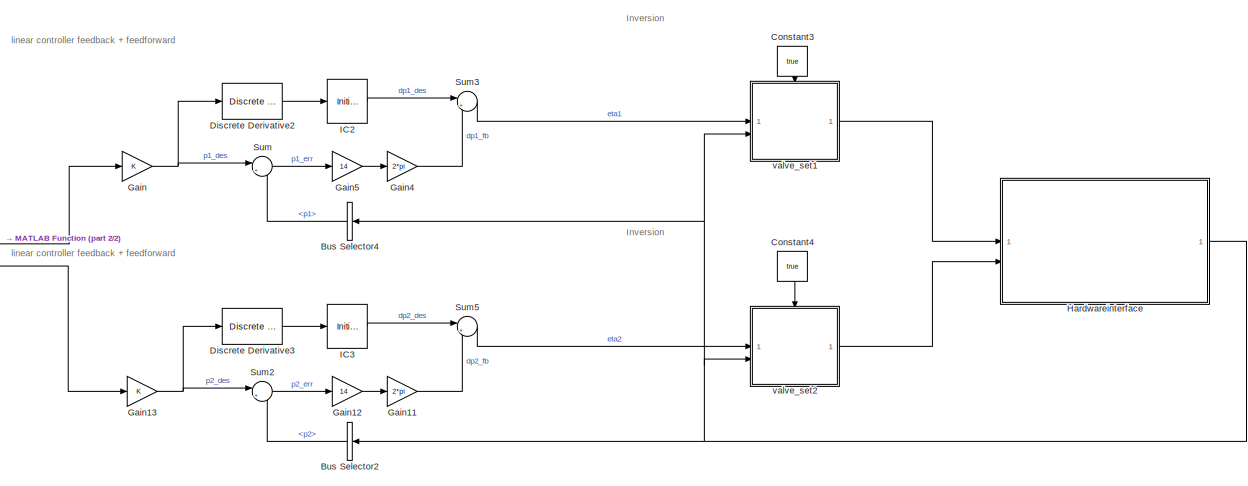
[diagram: root canvas - part 1/2, center side, full height]
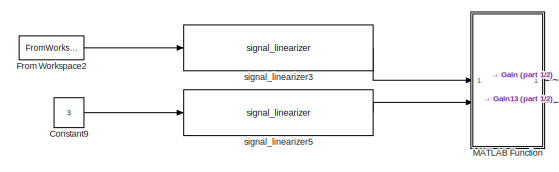
[diagram: root canvas - part 2/2, middle left region]
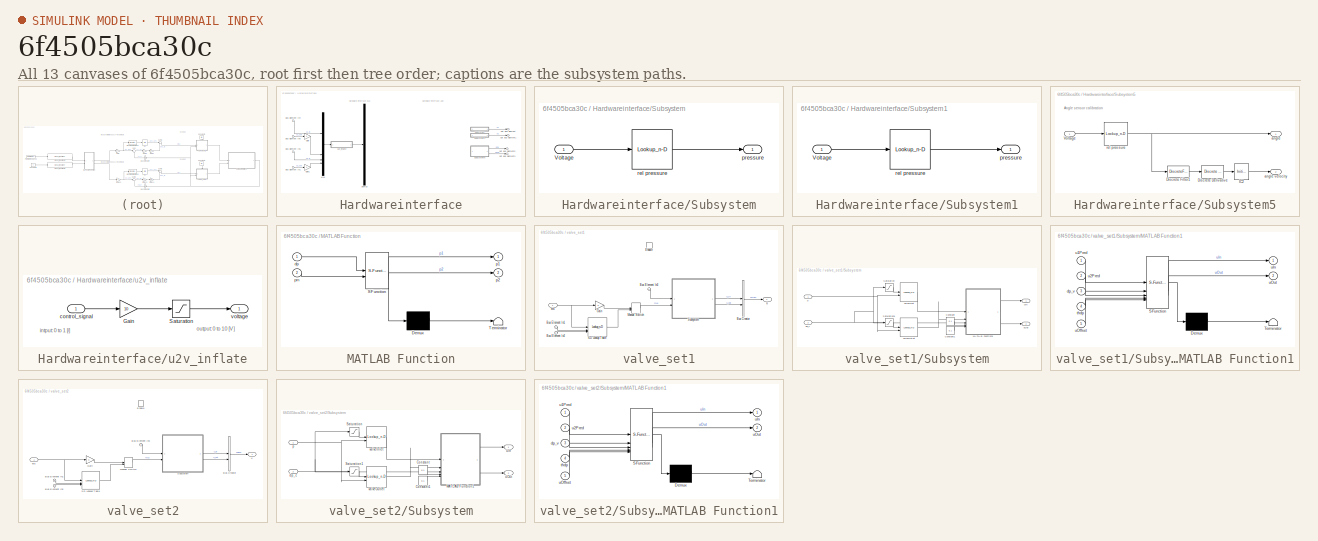
[diagram: thumbnail index - all 13 canvases of the model, root first then tree order]
MODEL slx_6f4505bca30c
KIND model
CONFIG AbsTol = auto
CONFIG EnableMultiTasking = off
CONFIG FixedStep = dt
CONFIG MaxStep = auto
CONFIG MinStep = auto
CONFIG RelTol = 1e-3
CONFIG SampleTimeConstraint = Unconstrained
CONFIG SolverName = FixedStepDiscrete
CONFIG StartTime = 0.0
CONFIG StopTime = inf
BLOCK [BusSelector] Bus Selector2
  NameLocation = top
  OutputSignals = p2
BLOCK [BusSelector] Bus Selector4
  NameLocation = top
  OutputSignals = p1
BLOCK [Constant] Constant3
  NameLocation = left
  Value = true
BLOCK [Constant] Constant4
  NameLocation = left
  Value = true
BLOCK [Constant] Constant9
  Value = 3
BLOCK [Reference] Discrete Derivative2  REF=simulink/Discrete/Discrete Derivative
  SourceBlock = simulink/Discrete/Discrete Derivative
  SourceType = Discrete Derivative
BLOCK [Reference] Discrete Derivative3  REF=simulink/Discrete/Discrete Derivative
  SourceBlock = simulink/Discrete/Discrete Derivative
  SourceType = Discrete Derivative
BLOCK [FromWorkspace] From Workspace2
  SampleTime = dta
  VariableName = pDesIn1
BLOCK [Gain] Gain
BLOCK [Gain] Gain11
  Gain = 2*pi
BLOCK [Gain] Gain12
  Gain = 14
BLOCK [Gain] Gain13
BLOCK [Gain] Gain4
  Gain = 2*pi
BLOCK [Gain] Gain5
  Gain = 14
BLOCK [SubSystem] Hardwareinterface
BLOCK [Inport] Hardwareinterface/Bus Element In1
  Port = 2
BLOCK [Inport] Hardwareinterface/Bus Element In4
BLOCK [Inport] Hardwareinterface/Bus Element In5
  Port = 2
BLOCK [Inport] Hardwareinterface/Bus Element In6
BLOCK [Demux] Hardwareinterface/Demux
BLOCK [Gain] Hardwareinterface/Gain
  Gain = -1
BLOCK [Gain] Hardwareinterface/Gain1
  Gain = -1
BLOCK [Mux] Hardwareinterface/Mux
  DisplayOption = bar
BLOCK [Outport] Hardwareinterface/Out Bus Element
BLOCK [Outport] Hardwareinterface/Out Bus Element1
BLOCK [Outport] Hardwareinterface/Out Bus Element3
BLOCK [Outport] Hardwareinterface/Out Bus Element5
BLOCK [SubSystem] Hardwareinterface/Subsystem
BLOCK [Inport] Hardwareinterface/Subsystem/Voltage
BLOCK [Outport] Hardwareinterface/Subsystem/pressure
  VectorParamsAs1DForOutWhenUnconnected = off
BLOCK [Lookup_n-D] Hardwareinterface/Subsystem/rel pressure
  BreakpointsForDimension1 = [0 10]
  InputPortMap = u0
  InternalRulePriority = Speed
  NumberOfTableDimensions = 1
  RndMeth = Simplest
  Table = [0 10]
BLOCK [SubSystem] Hardwareinterface/Subsystem1
BLOCK [Inport] Hardwareinterface/Subsystem1/Voltage
BLOCK [Outport] Hardwareinterface/Subsystem1/pressure
  VectorParamsAs1DForOutWhenUnconnected = off
BLOCK [Lookup_n-D] Hardwareinterface/Subsystem1/rel pressure
  BreakpointsForDimension1 = [0 10]
  InputPortMap = u0
  InternalRulePriority = Speed
  NumberOfTableDimensions = 1
  RndMeth = Simplest
  Table = [0 10]
BLOCK [SubSystem] Hardwareinterface/Subsystem5
BLOCK [Reference] Hardwareinterface/Subsystem5/Discrete Derivative  REF=simulink/Discrete/Discrete Derivative
  SourceBlock = simulink/Discrete/Discrete Derivative
  SourceType = Discrete Derivative
BLOCK [DiscreteFilter] Hardwareinterface/Subsystem5/Discrete Filter1
  CloseFcn = dspblkCoreblockFVToolHelper(gcbh,'close');
  CopyFcn = dspblkCoreblockFVToolHelper(gcbh,'copy');
  DeleteFcn = dspblkCoreblockFVToolHelper(gcbh,'close');
  Denominator = disfilt.angle.Denominator{1}
  InputPortMap = u0
  LoadFcn = dspblkCoreblockFVToolHelper(gcbh,'load');
  ModelCloseFcn = dspblkCoreblockFVToolHelper(gcbh,'close');
  Numerator = disfilt.angle.Numerator{1}
  PostSaveFcn = dspblkCoreblockFVToolHelper(gcbh,'postsave');
  PreSaveFcn = dspblkCoreblockFVToolHelper(gcbh,'presave');
BLOCK [InitialCondition] Hardwareinterface/Subsystem5/IC2
BLOCK [Inport] Hardwareinterface/Subsystem5/Voltage
BLOCK [Outport] Hardwareinterface/Subsystem5/angle
  VectorParamsAs1DForOutWhenUnconnected = off
BLOCK [Outport] Hardwareinterface/Subsystem5/angle velocity
  Port = 2
  VectorParamsAs1DForOutWhenUnconnected = off
BLOCK [Lookup_n-D] Hardwareinterface/Subsystem5/rel pressure
  BreakpointsForDimension1 = [2.167 3.14]
  InputPortMap = u0
  InternalRulePriority = Speed
  NumberOfTableDimensions = 1
  RndMeth = Simplest
  Table = [0.7854 -0.7854]
BLOCK [SubSystem] Hardwareinterface/u2v_inflate
BLOCK [Gain] Hardwareinterface/u2v_inflate/Gain
  Gain = 10
BLOCK [Saturate] Hardwareinterface/u2v_inflate/Saturation
  LowerLimit = 0
  UpperLimit = 10
BLOCK [Inport] Hardwareinterface/u2v_inflate/control_signal
BLOCK [Outport] Hardwareinterface/u2v_inflate/voltage
  VectorParamsAs1DForOutWhenUnconnected = off
BLOCK [InitialCondition] IC2
BLOCK [InitialCondition] IC3
BLOCK [SubSystem] MATLAB Function
  ErrorFcn = Stateflow.Translate.translate
  LibrarySourceBlock = simulink/User-Defined\nFunctions/MATLAB Function
  PermitHierarchicalResolution = ExplicitOnly
  SFBlockType = MATLAB Function
  TreatAsAtomicUnit = on
BLOCK [Demux] MATLAB Function/ Demux 
  Outputs = 1
BLOCK [S-Function] MATLAB Function/ SFunction 
  EnableBusSupport = on
  FunctionName = sf_sfun
  PortCounts = [2 3]
  SFcnIsStateOwnerBlock = off
  SFunctionDeploymentMode = off
  Tag = Stateflow S-Function 2
BLOCK [Terminator] MATLAB Function/ Terminator 
BLOCK [Inport] MATLAB Function/dp
BLOCK [Outport] MATLAB Function/p1
BLOCK [Outport] MATLAB Function/p2
  Port = 2
BLOCK [Inport] MATLAB Function/pm
  Port = 2
BLOCK [Sum] Sum
  Inputs = |+-
BLOCK [Sum] Sum2
  Inputs = |+-
BLOCK [Sum] Sum3
  Inputs = |++
BLOCK [Sum] Sum5
  Inputs = |++
BLOCK [Reference] signal_linearizer3  REF=subsignallib/signal_linearizer
  SourceBlock = subsignallib/signal_linearizer
  SourceProductName = Signals
BLOCK [Reference] signal_linearizer5  REF=subsignallib/signal_linearizer
  SourceBlock = subsignallib/signal_linearizer
  SourceProductName = Signals
BLOCK [SubSystem] valve_set1
BLOCK [BusCreator] valve_set1/Bus Creator
  DisplayOption = bar
  InheritFromInputs = on
  Inputs = 2
BLOCK [Inport] valve_set1/Bus Element In1
  Port = 2
BLOCK [Inport] valve_set1/Bus Element In2
  Port = 2
BLOCK [Inport] valve_set1/Bus Element In3
  Port = 2
BLOCK [EnablePort] valve_set1/Enable
BLOCK [Gain] valve_set1/Gain
BLOCK [ManualSwitch] valve_set1/Manual Switch
  CurrentSetting = 0
BLOCK [SubSystem] valve_set1/Subsystem
BLOCK [Constant] valve_set1/Subsystem/Constant
  Value = 0.1
BLOCK [Constant] valve_set1/Subsystem/Constant1
  Value = 0.1
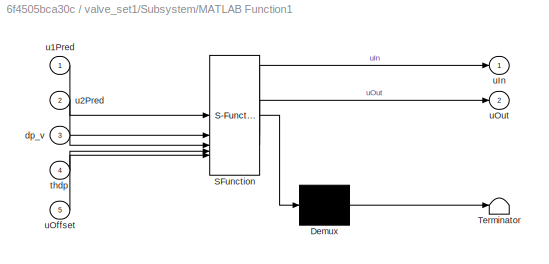
BLOCK [SubSystem] valve_set1/Subsystem/MATLAB Function1
  ErrorFcn = Stateflow.Translate.translate
  LibrarySourceBlock = simulink/User-Defined\nFunctions/MATLAB Function
  PermitHierarchicalResolution = ExplicitOnly
  SFBlockType = MATLAB Function
  TreatAsAtomicUnit = on
BLOCK [Demux] valve_set1/Subsystem/MATLAB Function1/ Demux 
  Outputs = 1
BLOCK [S-Function] valve_set1/Subsystem/MATLAB Function1/ SFunction 
  EnableBusSupport = on
  FunctionName = sf_sfun
  PortCounts = [5 3]
  SFcnIsStateOwnerBlock = off
  SFunctionDeploymentMode = off
  Tag = Stateflow S-Function 3
BLOCK [Terminator] valve_set1/Subsystem/MATLAB Function1/ Terminator 
BLOCK [Inport] valve_set1/Subsystem/MATLAB Function1/dp_v
  Port = 3
BLOCK [Inport] valve_set1/Subsystem/MATLAB Function1/thdp
  Port = 4
BLOCK [Inport] valve_set1/Subsystem/MATLAB Function1/u1Pred
BLOCK [Inport] valve_set1/Subsystem/MATLAB Function1/u2Pred
  Port = 2
BLOCK [Outport] valve_set1/Subsystem/MATLAB Function1/uIn
BLOCK [Inport] valve_set1/Subsystem/MATLAB Function1/uOffset
  Port = 5
BLOCK [Outport] valve_set1/Subsystem/MATLAB Function1/uOut
  Port = 2
BLOCK [Saturate] valve_set1/Subsystem/Saturation
  LowerLimit = 0
  UpperLimit = inf
BLOCK [Saturate] valve_set1/Subsystem/Saturation1
  LowerLimit = -inf
  UpperLimit = 0
BLOCK [Inport] valve_set1/Subsystem/dp_c
  Port = 2
BLOCK [Inport] valve_set1/Subsystem/p
BLOCK [Outport] valve_set1/Subsystem/uIn
BLOCK [Outport] valve_set1/Subsystem/uOut
  Port = 2
BLOCK [Lookup_n-D] valve_set1/Subsystem/valveInlet
  BreakpointsForDimension1 = vBlockParams.valveblock1.dpField.pos
  BreakpointsForDimension2 = vBlockParams.valveblock1.pField
  ExtrapMethod = Clip
  InputPortMap = u0,u1
  InternalRulePriority = Speed
  RndMeth = Simplest
  Table = vBlockParams.valveblock1.uPred.pos
BLOCK [Lookup_n-D] valve_set1/Subsystem/valveOutlet
  BreakpointsForDimension1 = vBlockParams.valveblock1.dpField.neg
  BreakpointsForDimension2 = vBlockParams.valveblock1.pField
  ExtrapMethod = Clip
  InputPortMap = u0,u1
  InternalRulePriority = Speed
  RndMeth = Simplest
  Table = vBlockParams.valveblock1.uPred.neg
BLOCK [Inport] valve_set1/eta
BLOCK [Lookup_n-D] valve_set1/n-D Lookup Table
  BreakpointsForDimension1 = vBlockParams.valveblock1.eta
  BreakpointsForDimension2 = vBlockParams.valveblock1.phi
  BreakpointsForDimension3 = vBlockParams.valveblock1.dphi
  InputPortMap = u0,u1,u2
  InternalRulePriority = Speed
  NumberOfTableDimensions = 3
  RndMeth = Simplest
  Table = vBlockParams.valveblock1.muPred
BLOCK [Outport] valve_set1/u
  InitialOutput = 0
  OutputWhenDisabled = reset
BLOCK [SubSystem] valve_set2
BLOCK [BusCreator] valve_set2/Bus Creator
  DisplayOption = bar
  InheritFromInputs = on
  Inputs = 2
BLOCK [Inport] valve_set2/Bus Element In1
  Port = 2
BLOCK [Inport] valve_set2/Bus Element In2
  Port = 2
BLOCK [Inport] valve_set2/Bus Element In3
  Port = 2
BLOCK [EnablePort] valve_set2/Enable
BLOCK [Gain] valve_set2/Gain
BLOCK [ManualSwitch] valve_set2/Manual Switch
  CurrentSetting = 0
BLOCK [SubSystem] valve_set2/Subsystem
BLOCK [Constant] valve_set2/Subsystem/Constant
  Value = 0.1
BLOCK [Constant] valve_set2/Subsystem/Constant1
  Value = 0.1
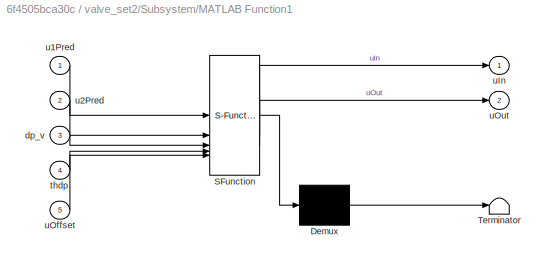
BLOCK [SubSystem] valve_set2/Subsystem/MATLAB Function1
  ErrorFcn = Stateflow.Translate.translate
  LibrarySourceBlock = simulink/User-Defined\nFunctions/MATLAB Function
  PermitHierarchicalResolution = ExplicitOnly
  SFBlockType = MATLAB Function
  TreatAsAtomicUnit = on
BLOCK [Demux] valve_set2/Subsystem/MATLAB Function1/ Demux 
  Outputs = 1
BLOCK [S-Function] valve_set2/Subsystem/MATLAB Function1/ SFunction 
  EnableBusSupport = on
  FunctionName = sf_sfun
  PortCounts = [5 3]
  SFcnIsStateOwnerBlock = off
  SFunctionDeploymentMode = off
  Tag = Stateflow S-Function 11
BLOCK [Terminator] valve_set2/Subsystem/MATLAB Function1/ Terminator 
BLOCK [Inport] valve_set2/Subsystem/MATLAB Function1/dp_v
  Port = 3
BLOCK [Inport] valve_set2/Subsystem/MATLAB Function1/thdp
  Port = 4
BLOCK [Inport] valve_set2/Subsystem/MATLAB Function1/u1Pred
BLOCK [Inport] valve_set2/Subsystem/MATLAB Function1/u2Pred
  Port = 2
BLOCK [Outport] valve_set2/Subsystem/MATLAB Function1/uIn
BLOCK [Inport] valve_set2/Subsystem/MATLAB Function1/uOffset
  Port = 5
BLOCK [Outport] valve_set2/Subsystem/MATLAB Function1/uOut
  Port = 2
BLOCK [Saturate] valve_set2/Subsystem/Saturation
  LowerLimit = 0
  UpperLimit = inf
BLOCK [Saturate] valve_set2/Subsystem/Saturation1
  LowerLimit = -inf
  UpperLimit = 0
BLOCK [Inport] valve_set2/Subsystem/dp_c
  Port = 2
BLOCK [Inport] valve_set2/Subsystem/p
BLOCK [Outport] valve_set2/Subsystem/uIn
BLOCK [Outport] valve_set2/Subsystem/uOut
  Port = 2
BLOCK [Lookup_n-D] valve_set2/Subsystem/valveInlet
  BreakpointsForDimension1 = vBlockParams.valveblock2.dpField.pos
  BreakpointsForDimension2 = vBlockParams.valveblock2.pField
  ExtrapMethod = Clip
  InputPortMap = u0,u1
  InternalRulePriority = Speed
  RndMeth = Simplest
  Table = vBlockParams.valveblock2.uPred.pos
BLOCK [Lookup_n-D] valve_set2/Subsystem/valveOutlet
  BreakpointsForDimension1 = vBlockParams.valveblock2.dpField.neg
  BreakpointsForDimension2 = vBlockParams.valveblock2.pField
  ExtrapMethod = Clip
  InputPortMap = u0,u1
  InternalRulePriority = Speed
  RndMeth = Simplest
  Table = vBlockParams.valveblock2.uPred.neg
BLOCK [Inport] valve_set2/eta
BLOCK [Lookup_n-D] valve_set2/n-D Lookup Table
  BreakpointsForDimension1 = vBlockParams.valveblock2.eta
  BreakpointsForDimension2 = vBlockParams.valveblock2.phi
  BreakpointsForDimension3 = vBlockParams.valveblock2.dphi
  InputPortMap = u0,u1,u2
  InternalRulePriority = Speed
  NumberOfTableDimensions = 3
  RndMeth = Simplest
  Table = vBlockParams.valveblock2.muPred
BLOCK [Outport] valve_set2/u
  InitialOutput = 0
  OutputWhenDisabled = reset
ANNOTATION (root): Inversion
ANNOTATION (root): linear controller feedback + feedforward
ANNOTATION Hardwareinterface: Hardware interface ADC
ANNOTATION Hardwareinterface: Hardware interface DAC
ANNOTATION Hardwareinterface/Subsystem5: Angle sensor calibration
ANNOTATION Hardwareinterface/u2v_inflate: intput: 0 to 1 [/]
ANNOTATION Hardwareinterface/u2v_inflate: output: 0 to 10 [V]
LINE Bus Selector2:1 -> Sum2:2
LINE Bus Selector4:1 -> Sum:2
LINE Constant3:1 -> valve_set1:enable
LINE Constant4:1 -> valve_set2:enable
LINE Constant9:1 -> signal_linearizer5:1
LINE Discrete Derivative2:1 -> IC2:1
LINE Discrete Derivative3:1 -> IC3:1
LINE From Workspace2:1 -> signal_linearizer3:1
LINE Gain11:1 -> Sum5:2
LINE Gain12:1 -> Gain11:1
NET Gain13:1 -> Discrete Derivative3:1, Sum2:1
LINE Gain4:1 -> Sum3:2
LINE Gain5:1 -> Gain4:1
NET Gain:1 -> Discrete Derivative2:1, Sum:1
LINE Hardwareinterface/Bus Element In1:1 -> Hardwareinterface/Gain1:1
LINE Hardwareinterface/Bus Element In4:1 -> Hardwareinterface/Mux:1
LINE Hardwareinterface/Bus Element In5:1 -> Hardwareinterface/Mux:3
LINE Hardwareinterface/Bus Element In6:1 -> Hardwareinterface/Gain:1
LINE Hardwareinterface/Gain1:1 -> Hardwareinterface/Mux:4
LINE Hardwareinterface/Gain:1 -> Hardwareinterface/Mux:2
LINE Hardwareinterface/Mux:1 -> Hardwareinterface/u2v_inflate:1
LINE Hardwareinterface/Subsystem/Voltage:1 -> Hardwareinterface/Subsystem/rel pressure:1
LINE Hardwareinterface/Subsystem/rel pressure:1 -> Hardwareinterface/Subsystem/pressure:1
LINE Hardwareinterface/Subsystem1/Voltage:1 -> Hardwareinterface/Subsystem1/rel pressure:1
LINE Hardwareinterface/Subsystem1/rel pressure:1 -> Hardwareinterface/Subsystem1/pressure:1
LINE Hardwareinterface/Subsystem1:1 -> Hardwareinterface/Out Bus Element1:1
LINE Hardwareinterface/Subsystem5/Discrete Derivative:1 -> Hardwareinterface/Subsystem5/IC2:1
LINE Hardwareinterface/Subsystem5/Discrete Filter1:1 -> Hardwareinterface/Subsystem5/Discrete Derivative:1
LINE Hardwareinterface/Subsystem5/IC2:1 -> Hardwareinterface/Subsystem5/angle velocity:1
LINE Hardwareinterface/Subsystem5/Voltage:1 -> Hardwareinterface/Subsystem5/rel pressure:1
NET Hardwareinterface/Subsystem5/rel pressure:1 -> Hardwareinterface/Subsystem5/Discrete Filter1:1, Hardwareinterface/Subsystem5/angle:1
LINE Hardwareinterface/Subsystem5:1 -> Hardwareinterface/Out Bus Element5:1
LINE Hardwareinterface/Subsystem5:2 -> Hardwareinterface/Out Bus Element3:1
LINE Hardwareinterface/Subsystem:1 -> Hardwareinterface/Out Bus Element:1
LINE Hardwareinterface/u2v_inflate/Gain:1 -> Hardwareinterface/u2v_inflate/Saturation:1
LINE Hardwareinterface/u2v_inflate/Saturation:1 -> Hardwareinterface/u2v_inflate/voltage:1
LINE Hardwareinterface/u2v_inflate/control_signal:1 -> Hardwareinterface/u2v_inflate/Gain:1
LINE Hardwareinterface/u2v_inflate:1 -> Hardwareinterface/Demux:1
NET Hardwareinterface:1 -> Bus Selector2:1, Bus Selector4:1, valve_set1:2, valve_set2:2
LINE IC2:1 -> Sum3:1
LINE IC3:1 -> Sum5:1
LINE MATLAB Function:1 -> Gain:1
LINE MATLAB Function:2 -> Gain13:1
LINE Sum2:1 -> Gain12:1
LINE Sum3:1 -> valve_set1:1
LINE Sum5:1 -> valve_set2:1
LINE Sum:1 -> Gain5:1
LINE signal_linearizer3:1 -> MATLAB Function:1
LINE signal_linearizer5:1 -> MATLAB Function:2
LINE valve_set1/Bus Creator:1 -> valve_set1/u:1
LINE valve_set1/Bus Element In1:1 -> valve_set1/n-D Lookup Table:2
LINE valve_set1/Bus Element In2:1 -> valve_set1/n-D Lookup Table:3
LINE valve_set1/Bus Element In3:1 -> valve_set1/Subsystem:1
LINE valve_set1/Gain:1 -> valve_set1/Manual Switch:1
LINE valve_set1/Manual Switch:1 -> valve_set1/Subsystem:2
LINE valve_set1/Subsystem/Constant1:1 -> valve_set1/Subsystem/MATLAB Function1:5
LINE valve_set1/Subsystem/Constant:1 -> valve_set1/Subsystem/MATLAB Function1:4
LINE valve_set1/Subsystem/MATLAB Function1:1 -> valve_set1/Subsystem/uIn:1
LINE valve_set1/Subsystem/MATLAB Function1:2 -> valve_set1/Subsystem/uOut:1
LINE valve_set1/Subsystem/Saturation1:1 -> valve_set1/Subsystem/valveOutlet:1
LINE valve_set1/Subsystem/Saturation:1 -> valve_set1/Subsystem/valveInlet:1
NET valve_set1/Subsystem/dp_c:1 -> valve_set1/Subsystem/MATLAB Function1:3, valve_set1/Subsystem/Saturation1:1, valve_set1/Subsystem/Saturation:1
NET valve_set1/Subsystem/p:1 -> valve_set1/Subsystem/valveInlet:2, valve_set1/Subsystem/valveOutlet:2
LINE valve_set1/Subsystem/valveInlet:1 -> valve_set1/Subsystem/MATLAB Function1:1
LINE valve_set1/Subsystem/valveOutlet:1 -> valve_set1/Subsystem/MATLAB Function1:2
LINE valve_set1/Subsystem:1 -> valve_set1/Bus Creator:1
LINE valve_set1/Subsystem:2 -> valve_set1/Bus Creator:2
NET valve_set1/eta:1 -> valve_set1/Gain:1, valve_set1/n-D Lookup Table:1
LINE valve_set1/n-D Lookup Table:1 -> valve_set1/Manual Switch:2
LINE valve_set1:1 -> Hardwareinterface:1
LINE valve_set2/Bus Creator:1 -> valve_set2/u:1
LINE valve_set2/Bus Element In1:1 -> valve_set2/n-D Lookup Table:2
LINE valve_set2/Bus Element In2:1 -> valve_set2/n-D Lookup Table:3
LINE valve_set2/Bus Element In3:1 -> valve_set2/Subsystem:1
LINE valve_set2/Gain:1 -> valve_set2/Manual Switch:1
LINE valve_set2/Manual Switch:1 -> valve_set2/Subsystem:2
LINE valve_set2/Subsystem/Constant1:1 -> valve_set2/Subsystem/MATLAB Function1:5
LINE valve_set2/Subsystem/Constant:1 -> valve_set2/Subsystem/MATLAB Function1:4
LINE valve_set2/Subsystem/MATLAB Function1:1 -> valve_set2/Subsystem/uIn:1
LINE valve_set2/Subsystem/MATLAB Function1:2 -> valve_set2/Subsystem/uOut:1
LINE valve_set2/Subsystem/Saturation1:1 -> valve_set2/Subsystem/valveOutlet:1
LINE valve_set2/Subsystem/Saturation:1 -> valve_set2/Subsystem/valveInlet:1
NET valve_set2/Subsystem/dp_c:1 -> valve_set2/Subsystem/MATLAB Function1:3, valve_set2/Subsystem/Saturation1:1, valve_set2/Subsystem/Saturation:1
NET valve_set2/Subsystem/p:1 -> valve_set2/Subsystem/valveInlet:2, valve_set2/Subsystem/valveOutlet:2
LINE valve_set2/Subsystem/valveInlet:1 -> valve_set2/Subsystem/MATLAB Function1:1
LINE valve_set2/Subsystem/valveOutlet:1 -> valve_set2/Subsystem/MATLAB Function1:2
LINE valve_set2/Subsystem:1 -> valve_set2/Bus Creator:1
LINE valve_set2/Subsystem:2 -> valve_set2/Bus Creator:2
NET valve_set2/eta:1 -> valve_set2/Gain:1, valve_set2/n-D Lookup Table:1
LINE valve_set2/n-D Lookup Table:1 -> valve_set2/Manual Switch:2
LINE valve_set2:1 -> Hardwareinterface:2
note: NET lines group one-source signal fan-out (src -> all destinations, sorted); 1:1 wires keep LINE
CHART MATLAB Function states=1 transitions=1
  STATE_LABEL 'eML_blk_kernel()'
  STATE_LABEL 'SCRIPT:\nfunction [p1, p2] = fcn(dp, pm)\np1 = pm+1/2*dp;\np2 = pm-1/2*dp;\n'
CHART valve_set1/Subsystem/MATLAB Function1 states=1 transitions=1
  STATE_LABEL 'eML_blk_kernel()'
  STATE_LABEL 'SCRIPT:\nfunction [uIn, uOut] = fcn(u1Pred, u2Pred, dp_v, thdp, uOffset)\nuIn = u1Pred - (dp_v < thdp)*uOffset;\nuOut = u2Pred + (dp_v > -thdp)*uOffset;\n\n'
CHART valve_set2/Subsystem/MATLAB Function1 states=1 transitions=1
  STATE_LABEL 'eML_blk_kernel()'
  STATE_LABEL 'SCRIPT:\nfunction [uIn, uOut] = fcn(u1Pred, u2Pred, dp_v, thdp, uOffset)\nuIn = u1Pred - (dp_v < thdp)*uOffset;\nuOut = u2Pred + (dp_v > -thdp)*uOffset;\n\n'
CHART  states=0 transitions=0
CHART  states=0 transitions=0
CHART  states=0 transitions=0
